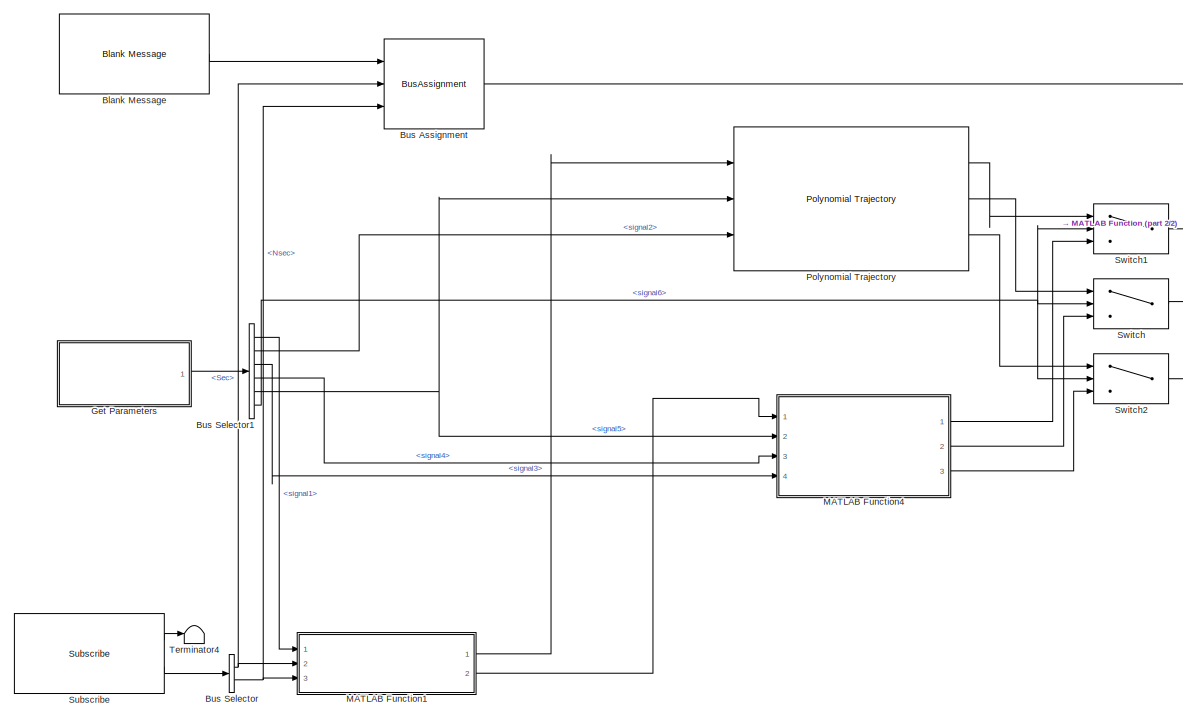
[diagram: root canvas - part 1/2, left side, full height]
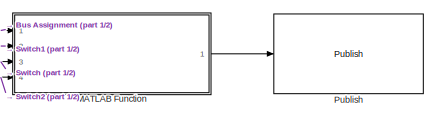
[diagram: root canvas - part 2/2, middle right region]
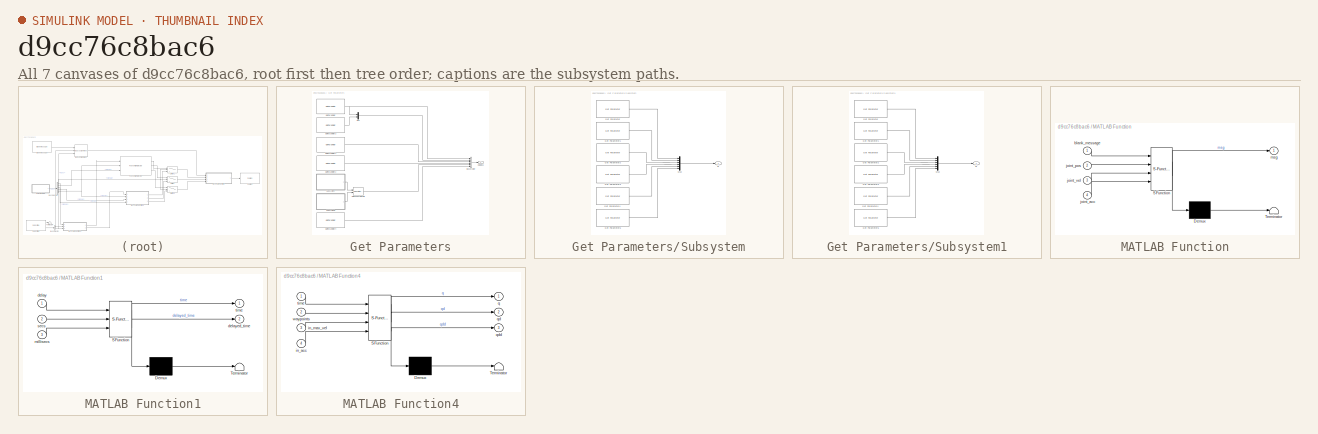
[diagram: thumbnail index - all 7 canvases of the model, root first then tree order]
MODEL slx_d9cc76c8bac6
KIND model
CONFIG AbsTol = auto
CONFIG EnableMultiTasking = off
CONFIG FixedStep = 0.01
CONFIG MaxStep = auto
CONFIG MinStep = auto
CONFIG RelTol = 1e-3
CONFIG SampleTimeConstraint = Unconstrained
CONFIG Solver = ode3
CONFIG SolverName = ode3
CONFIG StartTime = 0.0
CONFIG StopTime = inf
BLOCK [Reference] Blank Message  REF=robotlib/Blank Message
  Ports = [0, 1]
  SourceBlock = robotlib/Blank Message
  SourceProductBaseCode = RR
  SourceType = ROS Blank Message
BLOCK [BusAssignment] Bus Assignment
  AssignedSignals = TimeFromStart.Sec,TimeFromStart.Nsec
  Ports = [3, 1]
BLOCK [BusSelector] Bus Selector
  OutputSignals = Clock_.Sec,Clock_.Nsec
  Ports = [1, 2]
BLOCK [BusSelector] Bus Selector1
  OutputSignals = signal1,signal2,signal3,signal4,signal5,signal6
  Ports = [1, 6]
BLOCK [SubSystem] Get Parameters
  Ports = [0, 1]
  RequestExecContextInheritance = off
BLOCK [BusCreator] Get Parameters/Bus Creator
  DisplayOption = bar
  InheritFromInputs = on
  Inputs = 6
  Ports = [6, 1]
BLOCK [Outport] Get Parameters/Data Bus
BLOCK [Reference] Get Parameters/Get Parameter  REF=robotlib/Get Parameter
  Ports = [0, 1]
  SourceBlock = robotlib/Get Parameter
  SourceProductBaseCode = RR
  SourceType = ROS Get Parameter
BLOCK [Reference] Get Parameters/Get Parameter1  REF=robotlib/Get Parameter
  Ports = [0, 1]
  SourceBlock = robotlib/Get Parameter
  SourceProductBaseCode = RR
  SourceType = ROS Get Parameter
BLOCK [Reference] Get Parameters/Get Parameter2  REF=robotlib/Get Parameter
  Ports = [0, 1]
  SourceBlock = robotlib/Get Parameter
  SourceProductBaseCode = RR
  SourceType = ROS Get Parameter
BLOCK [Reference] Get Parameters/Get Parameter3  REF=robotlib/Get Parameter
  Ports = [0, 1]
  SourceBlock = robotlib/Get Parameter
  SourceProductBaseCode = RR
  SourceType = ROS Get Parameter
BLOCK [Reference] Get Parameters/Get Parameter4  REF=robotlib/Get Parameter
  Ports = [0, 1]
  SourceBlock = robotlib/Get Parameter
  SourceProductBaseCode = RR
  SourceType = ROS Get Parameter
BLOCK [Concatenate] Get Parameters/Matrix Concatenate
  ConcatenateDimension = 2
  Mode = Multidimensional array
  Ports = [2, 1]
BLOCK [Mux] Get Parameters/Mux
  DisplayOption = bar
  Inputs = 2
  Ports = [2, 1]
BLOCK [SubSystem] Get Parameters/Subsystem
  Ports = [0, 1]
  RequestExecContextInheritance = off
BLOCK [Reference] Get Parameters/Subsystem/Get Parameter  REF=robotlib/Get Parameter
  Ports = [0, 1]
  SourceBlock = robotlib/Get Parameter
  SourceProductBaseCode = RR
  SourceType = ROS Get Parameter
BLOCK [Reference] Get Parameters/Subsystem/Get Parameter1  REF=robotlib/Get Parameter
  Ports = [0, 1]
  SourceBlock = robotlib/Get Parameter
  SourceProductBaseCode = RR
  SourceType = ROS Get Parameter
BLOCK [Reference] Get Parameters/Subsystem/Get Parameter2  REF=robotlib/Get Parameter
  Ports = [0, 1]
  SourceBlock = robotlib/Get Parameter
  SourceProductBaseCode = RR
  SourceType = ROS Get Parameter
BLOCK [Reference] Get Parameters/Subsystem/Get Parameter3  REF=robotlib/Get Parameter
  Ports = [0, 1]
  SourceBlock = robotlib/Get Parameter
  SourceProductBaseCode = RR
  SourceType = ROS Get Parameter
BLOCK [Reference] Get Parameters/Subsystem/Get Parameter4  REF=robotlib/Get Parameter
  Ports = [0, 1]
  SourceBlock = robotlib/Get Parameter
  SourceProductBaseCode = RR
  SourceType = ROS Get Parameter
BLOCK [Reference] Get Parameters/Subsystem/Get Parameter5  REF=robotlib/Get Parameter
  Ports = [0, 1]
  SourceBlock = robotlib/Get Parameter
  SourceProductBaseCode = RR
  SourceType = ROS Get Parameter
BLOCK [Mux] Get Parameters/Subsystem/Mux
  DisplayOption = bar
  Inputs = 6
  Ports = [6, 1]
BLOCK [Outport] Get Parameters/Subsystem/qi
BLOCK [SubSystem] Get Parameters/Subsystem1
  Ports = [0, 1]
  RequestExecContextInheritance = off
BLOCK [Reference] Get Parameters/Subsystem1/Get Parameter  REF=robotlib/Get Parameter
  Ports = [0, 1]
  SourceBlock = robotlib/Get Parameter
  SourceProductBaseCode = RR
  SourceType = ROS Get Parameter
BLOCK [Reference] Get Parameters/Subsystem1/Get Parameter1  REF=robotlib/Get Parameter
  Ports = [0, 1]
  SourceBlock = robotlib/Get Parameter
  SourceProductBaseCode = RR
  SourceType = ROS Get Parameter
BLOCK [Reference] Get Parameters/Subsystem1/Get Parameter2  REF=robotlib/Get Parameter
  Ports = [0, 1]
  SourceBlock = robotlib/Get Parameter
  SourceProductBaseCode = RR
  SourceType = ROS Get Parameter
BLOCK [Reference] Get Parameters/Subsystem1/Get Parameter3  REF=robotlib/Get Parameter
  Ports = [0, 1]
  SourceBlock = robotlib/Get Parameter
  SourceProductBaseCode = RR
  SourceType = ROS Get Parameter
BLOCK [Reference] Get Parameters/Subsystem1/Get Parameter4  REF=robotlib/Get Parameter
  Ports = [0, 1]
  SourceBlock = robotlib/Get Parameter
  SourceProductBaseCode = RR
  SourceType = ROS Get Parameter
BLOCK [Reference] Get Parameters/Subsystem1/Get Parameter5  REF=robotlib/Get Parameter
  Ports = [0, 1]
  SourceBlock = robotlib/Get Parameter
  SourceProductBaseCode = RR
  SourceType = ROS Get Parameter
BLOCK [Mux] Get Parameters/Subsystem1/Mux
  DisplayOption = bar
  Inputs = 6
  Ports = [6, 1]
BLOCK [Outport] Get Parameters/Subsystem1/qf
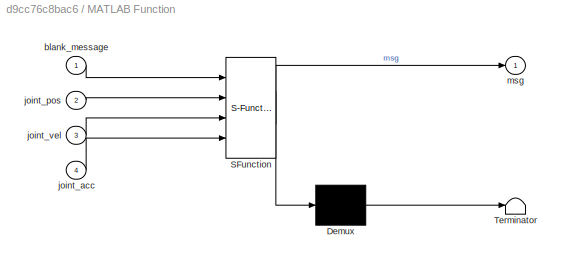
BLOCK [SubSystem] MATLAB Function
  ErrorFcn = Stateflow.Translate.translate
  PermitHierarchicalResolution = ExplicitOnly
  Ports = [4, 1]
  RequestExecContextInheritance = off
  SFBlockType = MATLAB Function
  TreatAsAtomicUnit = on
BLOCK [Demux] MATLAB Function/ Demux 
  Outputs = 1
  Ports = [1, 1]
BLOCK [S-Function] MATLAB Function/ SFunction 
  EnableBusSupport = on
  FunctionName = sf_sfun
  PortCounts = [4 2]
  Ports = [4, 2]
  SFcnIsStateOwnerBlock = off
  SFunctionDeploymentMode = off
  Tag = Stateflow S-Function 2
BLOCK [Terminator] MATLAB Function/ Terminator 
BLOCK [Inport] MATLAB Function/blank_message
BLOCK [Inport] MATLAB Function/joint_acc
  Port = 4
BLOCK [Inport] MATLAB Function/joint_pos
  Port = 2
BLOCK [Inport] MATLAB Function/joint_vel
  Port = 3
BLOCK [Outport] MATLAB Function/msg
BLOCK [SubSystem] MATLAB Function1
  ErrorFcn = Stateflow.Translate.translate
  PermitHierarchicalResolution = ExplicitOnly
  Ports = [3, 2]
  RequestExecContextInheritance = off
  SFBlockType = MATLAB Function
  TreatAsAtomicUnit = on
BLOCK [Demux] MATLAB Function1/ Demux 
  Outputs = 1
  Ports = [1, 1]
BLOCK [S-Function] MATLAB Function1/ SFunction 
  EnableBusSupport = on
  FunctionName = sf_sfun
  PortCounts = [3 3]
  Ports = [3, 3]
  SFcnIsStateOwnerBlock = off
  SFunctionDeploymentMode = off
  Tag = Stateflow S-Function 1
BLOCK [Terminator] MATLAB Function1/ Terminator 
BLOCK [Inport] MATLAB Function1/delay
BLOCK [Outport] MATLAB Function1/delayed_time
  Port = 2
BLOCK [Inport] MATLAB Function1/millisecs
  Port = 3
BLOCK [Inport] MATLAB Function1/secs
  Port = 2
BLOCK [Outport] MATLAB Function1/time
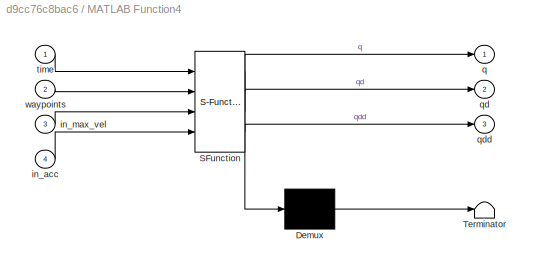
BLOCK [SubSystem] MATLAB Function4
  ErrorFcn = Stateflow.Translate.translate
  PermitHierarchicalResolution = ExplicitOnly
  Ports = [4, 3]
  RequestExecContextInheritance = off
  SFBlockType = MATLAB Function
  TreatAsAtomicUnit = on
BLOCK [Demux] MATLAB Function4/ Demux 
  Outputs = 1
  Ports = [1, 1]
BLOCK [S-Function] MATLAB Function4/ SFunction 
  EnableBusSupport = on
  FunctionName = sf_sfun
  PortCounts = [4 4]
  Ports = [4, 4]
  SFcnIsStateOwnerBlock = off
  SFunctionDeploymentMode = off
  Tag = Stateflow S-Function 4
BLOCK [Terminator] MATLAB Function4/ Terminator 
BLOCK [Inport] MATLAB Function4/in_acc
  Port = 4
BLOCK [Inport] MATLAB Function4/in_max_vel
  Port = 3
BLOCK [Outport] MATLAB Function4/q
BLOCK [Outport] MATLAB Function4/qd
  Port = 2
BLOCK [Outport] MATLAB Function4/qdd
  Port = 3
BLOCK [Inport] MATLAB Function4/time
BLOCK [Inport] MATLAB Function4/waypoints
  Port = 2
BLOCK [Reference] Polynomial Trajectory  REF=robotcorelib/Polynomial Trajectory
  Ports = [3, 3]
  SourceBlock = robotcorelib/Polynomial Trajectory
  SourceProductBaseCode = NV,RO,RR
  SourceType = robotics.slcore.internal.block.PolyTrajSys
BLOCK [Reference] Publish  REF=robotlib/Publish
  Ports = [1]
  SourceBlock = robotlib/Publish
  SourceProductBaseCode = RR
  SourceType = ROS Publish
BLOCK [Reference] Subscribe  REF=robotlib/Subscribe
  Ports = [0, 2]
  SourceBlock = robotlib/Subscribe
  SourceProductBaseCode = RR
  SourceType = ROS Subscribe
BLOCK [Switch] Switch
  Criteria = u2 > Threshold
  InputSameDT = off
  SaturateOnIntegerOverflow = off
  Threshold = 1
BLOCK [Switch] Switch1
  Criteria = u2 > Threshold
  InputSameDT = off
  SaturateOnIntegerOverflow = off
  Threshold = 1
BLOCK [Switch] Switch2
  Criteria = u2 > Threshold
  InputSameDT = off
  SaturateOnIntegerOverflow = off
  Threshold = 1
BLOCK [Terminator] Terminator4
LINE Blank Message:1 -> Bus Assignment:1
LINE Bus Assignment:1 -> MATLAB Function:1
LINE Bus Selector1:1 -> MATLAB Function1:1
LINE Bus Selector1:2 -> Polynomial Trajectory:3
LINE Bus Selector1:3 -> MATLAB Function4:4
LINE Bus Selector1:4 -> MATLAB Function4:3
NET Bus Selector1:5 -> MATLAB Function4:2, Polynomial Trajectory:2
NET Bus Selector1:6 -> Switch1:2, Switch2:2, Switch:2
NET Bus Selector:1 -> Bus Assignment:2, MATLAB Function1:2
NET Bus Selector:2 -> Bus Assignment:3, MATLAB Function1:3
LINE Get Parameters/Bus Creator:1 -> Get Parameters/Data Bus:1
LINE Get Parameters/Get Parameter1:1 -> Get Parameters/Bus Creator:3
LINE Get Parameters/Get Parameter2:1 -> Get Parameters/Bus Creator:4
LINE Get Parameters/Get Parameter3:1 -> Get Parameters/Mux:2
LINE Get Parameters/Get Parameter4:1 -> Get Parameters/Bus Creator:6
NET Get Parameters/Get Parameter:1 -> Get Parameters/Bus Creator:1, Get Parameters/Mux:1
LINE Get Parameters/Matrix Concatenate:1 -> Get Parameters/Bus Creator:5
LINE Get Parameters/Mux:1 -> Get Parameters/Bus Creator:2
LINE Get Parameters/Subsystem/Get Parameter1:1 -> Get Parameters/Subsystem/Mux:2
LINE Get Parameters/Subsystem/Get Parameter2:1 -> Get Parameters/Subsystem/Mux:3
LINE Get Parameters/Subsystem/Get Parameter3:1 -> Get Parameters/Subsystem/Mux:4
LINE Get Parameters/Subsystem/Get Parameter4:1 -> Get Parameters/Subsystem/Mux:5
LINE Get Parameters/Subsystem/Get Parameter5:1 -> Get Parameters/Subsystem/Mux:6
LINE Get Parameters/Subsystem/Get Parameter:1 -> Get Parameters/Subsystem/Mux:1
LINE Get Parameters/Subsystem/Mux:1 -> Get Parameters/Subsystem/qi:1
LINE Get Parameters/Subsystem1/Get Parameter1:1 -> Get Parameters/Subsystem1/Mux:2
LINE Get Parameters/Subsystem1/Get Parameter2:1 -> Get Parameters/Subsystem1/Mux:3
LINE Get Parameters/Subsystem1/Get Parameter3:1 -> Get Parameters/Subsystem1/Mux:4
LINE Get Parameters/Subsystem1/Get Parameter4:1 -> Get Parameters/Subsystem1/Mux:5
LINE Get Parameters/Subsystem1/Get Parameter5:1 -> Get Parameters/Subsystem1/Mux:6
LINE Get Parameters/Subsystem1/Get Parameter:1 -> Get Parameters/Subsystem1/Mux:1
LINE Get Parameters/Subsystem1/Mux:1 -> Get Parameters/Subsystem1/qf:1
LINE Get Parameters/Subsystem1:1 -> Get Parameters/Matrix Concatenate:2
LINE Get Parameters/Subsystem:1 -> Get Parameters/Matrix Concatenate:1
LINE Get Parameters:1 -> Bus Selector1:1
LINE MATLAB Function1:1 -> Polynomial Trajectory:1
LINE MATLAB Function1:2 -> MATLAB Function4:1
LINE MATLAB Function4:1 -> Switch1:3
LINE MATLAB Function4:2 -> Switch:3
LINE MATLAB Function4:3 -> Switch2:3
LINE MATLAB Function:1 -> Publish:1
LINE Polynomial Trajectory:1 -> Switch1:1
LINE Polynomial Trajectory:2 -> Switch:1
LINE Polynomial Trajectory:3 -> Switch2:1
LINE Subscribe:1 -> Terminator4:1
LINE Subscribe:2 -> Bus Selector:1
LINE Switch1:1 -> MATLAB Function:2
LINE Switch2:1 -> MATLAB Function:4
LINE Switch:1 -> MATLAB Function:3
note: NET lines group one-source signal fan-out (src -> all destinations, sorted); 1:1 wires keep LINE
CHART MATLAB Function1 states=1 transitions=1
  STATE_LABEL 'eML_blk_kernel()'
  STATE_LABEL 'SCRIPT:\nfunction [time, delayed_time] = get_time(delay, secs, millisecs)\n\n    time = secs + millisecs / 1e9;\n    delayed_time = time - delay;\n    \n    if delayed_time < 0\n        delayed_time = 0;\n    end\n'
CHART MATLAB Function states=1 transitions=1
  STATE_LABEL 'eML_blk_kernel()'
  STATE_LABEL 'SCRIPT:\nfunction msg = assign_trajectory(blank_message, joint_pos, joint_vel, joint_acc)\n\n    msg = blank_message;\n    numJoints = length(joint_vel);\n    msg.Velocities_SL_Info.CurrentLength = uint32(numJoints);\n    msg.Velocities(1:numJoints) = joint_vel;\n    msg.Positions_SL_Info.CurrentLength = uint32(numJoints);\n    msg.Positions(1:numJoints) = joint_pos;\n    msg.Accelerations_SL_Info.CurrentL...<+79ch>'
CHART MATLAB Function4 states=1 transitions=1
  STATE_LABEL 'eML_blk_kernel()'
  STATE_LABEL 'SCRIPT:\nfunction [q, qd, qdd] = fcn(time, waypoints, in_max_vel, in_acc)\n\n    [rows, columns] = size(waypoints);\n\n    q = waypoints(:, 1);\n    qd = zeros(rows, 1);\n    qdd = zeros(rows, 1);\n\n    if time < 0\n        time = 0;\n    end\n\n    if length(in_max_vel) == 1\n        max_vel = in_max_vel * ones(rows, 1);\n    else\n        max_vel = in_max_vel;\n    end\n\n    if length(in_acc) == 1\n        acc = ...<+2274ch>'
CHART  states=0 transitions=0
CHART  states=0 transitions=0
CHART  states=0 transitions=0
